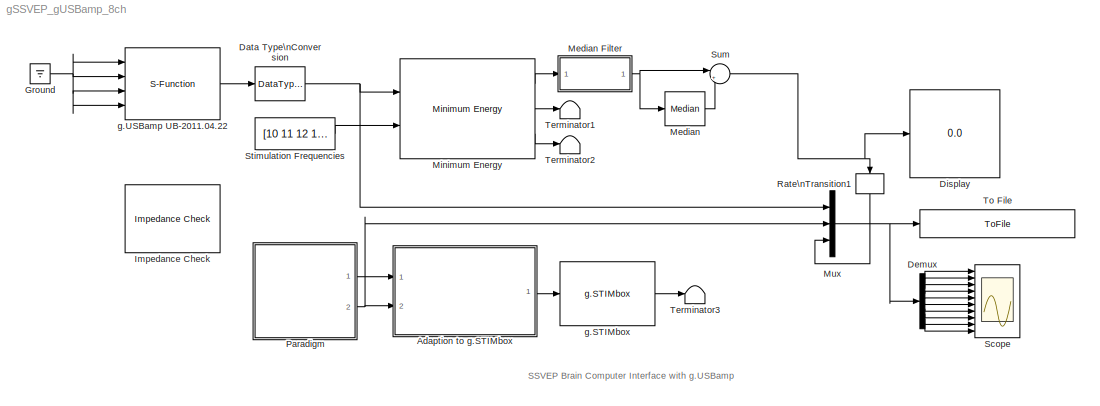
MODEL gSSVEP_gUSBamp_8ch
KIND model
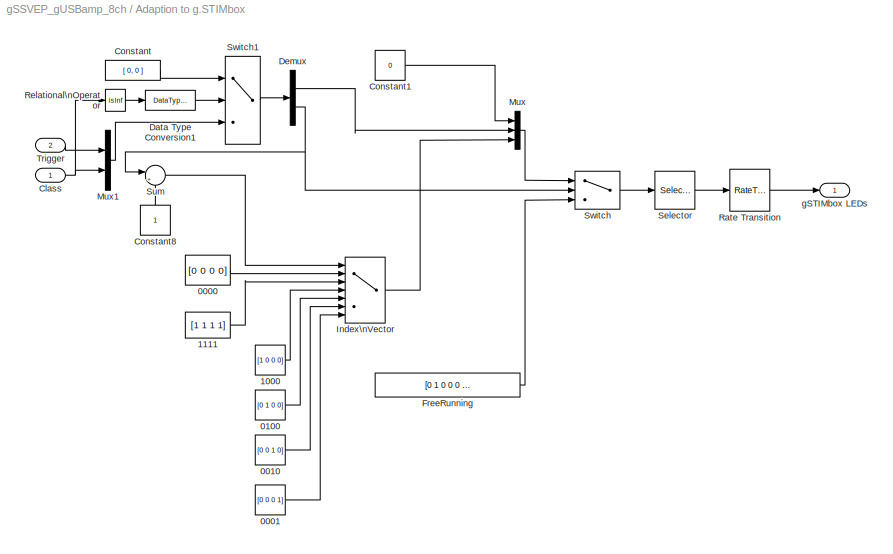
BLOCK [SubSystem] Adaption to g.STIMbox
  MinAlgLoopOccurrences = on
  Ports = [2, 1]
  RequestExecContextInheritance = off
  SID = 1
  Variant = off
BLOCK [Constant] Adaption to g.STIMbox/0000
  SID = 4
  SampleTime = 1/256
  Value = [0 0 0 0]
BLOCK [Constant] Adaption to g.STIMbox/0001
  SID = 5
  SampleTime = 1/256
  Value = [0 0 0 1]
BLOCK [Constant] Adaption to g.STIMbox/0010
  SID = 6
  SampleTime = 1/256
  Value = [0 0 1 0]
BLOCK [Constant] Adaption to g.STIMbox/0100
  SID = 7
  SampleTime = 1/256
  Value = [0 1 0 0]
BLOCK [Constant] Adaption to g.STIMbox/1000
  SID = 8
  SampleTime = 1/256
  Value = [1 0 0 0]
BLOCK [Constant] Adaption to g.STIMbox/1111
  SID = 9
  SampleTime = 1/256
  Value = [1 1 1 1]
BLOCK [Inport] Adaption to g.STIMbox/Class
  IconDisplay = Port number
  SID = 2
BLOCK [Constant] Adaption to g.STIMbox/Constant
  SID = 73
  Value = [ 0, 0 ]
BLOCK [Constant] Adaption to g.STIMbox/Constant1
  SID = 10
  SampleTime = 1/256
  Value = 0
BLOCK [Constant] Adaption to g.STIMbox/Constant8
  SID = 11
  SampleTime = 1/256
BLOCK [DataTypeConversion] Adaption to g.STIMbox/Data Type Conversion1
  RndMeth = Floor
  SID = 74
  SaturateOnIntegerOverflow = off
BLOCK [Demux] Adaption to g.STIMbox/Demux
  DisplayOption = bar
  Outputs = 2
  Ports = [1, 2]
  SID = 78
BLOCK [Constant] Adaption to g.STIMbox/FreeRunning
  SID = 12
  SampleTime = 1/256
  Value = [0 1 0 0 0 0]
BLOCK [MultiPortSwitch] Adaption to g.STIMbox/Index\nVector
  DataPortOrder = Zero-based contiguous
  InputSameDT = off
  Inputs = 6
  Ports = [7, 1]
  SID = 13
  SaturateOnIntegerOverflow = off
  zeroidx = on
BLOCK [Mux] Adaption to g.STIMbox/Mux
  DisplayOption = bar
  Inputs = 3
  Ports = [3, 1]
  SID = 14
BLOCK [Mux] Adaption to g.STIMbox/Mux1
  DisplayOption = bar
  Inputs = 2
  Ports = [2, 1]
  SID = 77
BLOCK [RateTransition] Adaption to g.STIMbox/Rate Transition
  SID = 15
BLOCK [RelationalOperator] Adaption to g.STIMbox/Relational\nOperator
  InputSameDT = off
  Operator = isInf
  OutDataTypeStr = boolean
  Ports = [1, 1]
  SID = 75
BLOCK [Selector] Adaption to g.STIMbox/Selector
  IndexOptions = Index vector (dialog)
  Indices = [ones(1,8) 2 3 2 4 2 5 2 6]
  InputPortWidth = 6
  OutputSizes = 1
  Ports = [1, 1]
  SID = 16
BLOCK [Sum] Adaption to g.STIMbox/Sum
  IconShape = round
  InputSameDT = off
  Inputs = |++
  OutDataTypeStr = Inherit: Inherit via internal rule
  Ports = [2, 1]
  SID = 17
  SaturateOnIntegerOverflow = off
BLOCK [Switch] Adaption to g.STIMbox/Switch
  InputSameDT = off
  SID = 18
  SaturateOnIntegerOverflow = off
BLOCK [Switch] Adaption to g.STIMbox/Switch1
  Criteria = u2 > Threshold
  InputSameDT = off
  SID = 76
  SaturateOnIntegerOverflow = off
BLOCK [Inport] Adaption to g.STIMbox/Trigger
  IconDisplay = Port number
  Port = 2
  SID = 3
BLOCK [Outport] Adaption to g.STIMbox/gSTIMbox LEDs
  IconDisplay = Port number
  SID = 19
BLOCK [DataTypeConversion] Data Type\nConversion
  OutDataTypeStr = double
  RndMeth = Floor
  SID = 21
  SaturateOnIntegerOverflow = off
BLOCK [Demux] Demux
  DisplayOption = bar
  Outputs = 10
  Ports = [1, 10]
  SID = 22
BLOCK [Display] Display
  Decimation = 1
  Ports = [1]
  SID = 23
BLOCK [Ground] Ground
  SID = 84
BLOCK [Reference] Impedance Check  REF=Tools/Impedance Check
  Ports = []
  SID = 26
  SourceBlock = Tools/Impedance Check
  SourceType = g.USBamp Impedance Check
BLOCK [Reference] Median  REF=dspstat3/Median
  LockScale = off
  Ports = [1, 1]
  SID = 61
  SourceBlock = dspstat3/Median
  SourceType = Median
  accumDataTypeStr = Inherit: Same as product output
  accumFracLength = 30
  accumLastDataTypeStr = Inherit: Same as product output
  accumMode = Same as product output
  accumWordLength = 32
  additionalParams = off
  allowOverrides = off
  dimension = 1
  directionMode = Entire input
  outputDataTypeStr = Inherit: Same as accumulator
  outputFracLength = 15
  outputLastDataTypeStr = Inherit: Same as accumulator
  outputMax = []
  outputMin = []
  outputMode = Same as accumulator
  outputWordLength = 16
  overflowMode = off
  prodOutputDataTypeStr = Inherit: Same as input
  prodOutputFracLength = 30
  prodOutputLastDataTypeStr = Inherit: Same as input
  prodOutputMode = Same as input
  prodOutputWordLength = 32
  roundingMode = Floor
  sortAlg = Quick sort
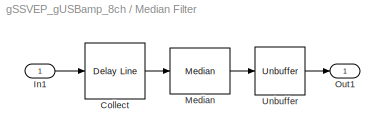
BLOCK [SubSystem] Median Filter
  Ports = [1, 1]
  RequestExecContextInheritance = off
  SID = 55
  Variant = off
BLOCK [Reference] Median Filter/Collect  REF=dspbuff3/Delay Line
  OutputFrames = on
  Ports = [1, 1]
  SID = 57
  SourceBlock = dspbuff3/Delay Line
  SourceType = Delay Line
  TreatMby1Signals = M channels (this choice will be removed - see release notes)
  UserData = DataTag0
  UserDataPersistent = on
  directfeed = on
  enable_output = off
  hold_output = off
  ic = 0
  siz = 10
BLOCK [Inport] Median Filter/In1
  IconDisplay = Port number
  SID = 56
BLOCK [Reference] Median Filter/Median  REF=dspstat3/Median
  LockScale = off
  Ports = [1, 1]
  SID = 58
  SourceBlock = dspstat3/Median
  SourceType = Median
  accumDataTypeStr = Inherit: Same as product output
  accumFracLength = 30
  accumLastDataTypeStr = Inherit: Same as product output
  accumMode = Same as product output
  accumWordLength = 32
  additionalParams = off
  allowOverrides = off
  dimension = 1
  directionMode = Specified dimension
  outputDataTypeStr = Inherit: Same as accumulator
  outputFracLength = 15
  outputLastDataTypeStr = Inherit: Same as accumulator
  outputMax = []
  outputMin = []
  outputMode = Same as accumulator
  outputWordLength = 16
  overflowMode = off
  prodOutputDataTypeStr = Inherit: Same as input
  prodOutputFracLength = 30
  prodOutputLastDataTypeStr = Inherit: Same as input
  prodOutputMode = Same as input
  prodOutputWordLength = 32
  roundingMode = Floor
  sortAlg = Quick sort
BLOCK [Outport] Median Filter/Out1
  IconDisplay = Port number
  SID = 60
BLOCK [Unbuffer] Median Filter/Unbuffer
  Ports = [1, 1]
  SID = 64
BLOCK [Reference] Minimum Energy  REF=gRTanalyze/Minimum Energy
  Ports = [2, 3]
  SID = 33
  SourceBlock = gRTanalyze/Minimum Energy
  SourceType = SSVEP Minimum Energy
  UserData = DataTag1
  UserDataPersistent = on
  bufflen = 768
  modelorder = 7
  numharmonics = 1
  reprate = 0.20
BLOCK [Mux] Mux
  DisplayOption = bar
  Inputs = 3
  Ports = [3, 1]
  SID = 34
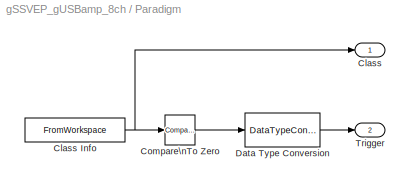
BLOCK [SubSystem] Paradigm
  MinAlgLoopOccurrences = on
  Ports = [0, 2]
  RequestExecContextInheritance = off
  SID = 35
  Variant = off
BLOCK [Outport] Paradigm/Class
  IconDisplay = Port number
  InitialOutput = 0
  SID = 39
BLOCK [FromWorkspace] Paradigm/Class Info
  Interpolate = off
  OutputAfterFinalValue = Holding final value
  SID = 36
  SampleTime = 1/256
  VariableName = paradigmDrivePattern
  ZeroCross = on
BLOCK [Reference] Paradigm/Compare\nTo Zero  REF=simulink/Logic and Bit\nOperations/Compare\nTo Zero
  OutDataTypeStr = uint8
  Ports = [1, 1]
  SID = 37
  SourceBlock = simulink/Logic and Bit\nOperations/Compare\nTo Zero
  SourceType = Compare To Zero
  ZeroCross = off
  relop = >
BLOCK [DataTypeConversion] Paradigm/Data Type Conversion
  RndMeth = Floor
  SID = 38
  SaturateOnIntegerOverflow = off
BLOCK [Outport] Paradigm/Trigger
  IconDisplay = Port number
  InitialOutput = 0
  Port = 2
  SID = 40
BLOCK [RateTransition] Rate\nTransition1
  SID = 41
BLOCK [Scope] Scope
  NumInputPorts = 10
  Ports = [10]
  SID = 42
  ScopeSpecificationString = Simulink.scopes.TimeScopeBlockCfg('CurrentConfiguration', extmgr.ConfigurationSet(extmgr.Configuration('Core','General UI',true),extmgr.Configuration('Core','Source UI',true),extmgr.Configuration('Sources','WiredSimulink',true,'DataLoggingSaveFormat','StructureWithTime','DataLoggingLimitDataPoints',true,'DataLoggingDecimation','1','DataLoggingDecimateData',true),extmgr.Configuration('Visuals','Tim...<+9302ch>
BLOCK [Constant] Stimulation Frequencies
  SID = 43
  SampleTime = 1/256
  Value = [10 11 12 13]
BLOCK [Sum] Sum
  IconShape = round
  InputSameDT = off
  Inputs = |+-
  OutDataTypeStr = Inherit: Inherit via internal rule
  Ports = [2, 1]
  SID = 62
  SaturateOnIntegerOverflow = off
BLOCK [Terminator] Terminator1
  SID = 44
BLOCK [Terminator] Terminator2
  SID = 45
BLOCK [Terminator] Terminator3
  SID = 46
BLOCK [ToFile] To File
  Filename = training_session_2.mat
  MatrixName = y
  Ports = [1]
  SID = 47
BLOCK [Reference] g.STIMbox  REF=gSTIMboxlib/g.STIMbox
  Ports = [1, 1]
  SID = 53
  SourceBlock = gSTIMboxlib/g.STIMbox
  SourceType = g.STIMbox
  bm = 0
  chfreqs = [1   1   1   1   1   1   1   1  10   1  11   1  12   1  13   1]
  chinv = [0  0  0  0  0  0  0  0  0  0  0  0  0  0]
  chmodes = [0  0  0  0  0  0  0  0  1  0  1  0  1  0  1  0]
  comport = 3
  fl = 1
  fs = 1
  ia = 1
  sr = 32
BLOCK [S-Function] g.USBamp UB-2011.04.22
  EnableBusSupport = off
  FunctionName = sf_gUSBamp
  OpenFcn = %gua_click   \ngua_block_cfg
  Parameters = cfg,snr
  Ports = [4, 1]
  SFunctionDeploymentMode = off
  SID = 54
ANNOTATION (root): SSVEP Brain Computer Interface with g.USBamp
LINE Adaption to g.STIMbox/0000:1 -> Adaption to g.STIMbox/Index\nVector:2
LINE Adaption to g.STIMbox/0001:1 -> Adaption to g.STIMbox/Index\nVector:7
LINE Adaption to g.STIMbox/0010:1 -> Adaption to g.STIMbox/Index\nVector:6
LINE Adaption to g.STIMbox/0100:1 -> Adaption to g.STIMbox/Index\nVector:5
LINE Adaption to g.STIMbox/1000:1 -> Adaption to g.STIMbox/Index\nVector:4
LINE Adaption to g.STIMbox/1111:1 -> Adaption to g.STIMbox/Index\nVector:3
NET Adaption to g.STIMbox/Class:1 -> Adaption to g.STIMbox/Mux1:2, Adaption to g.STIMbox/Relational\nOperator:1
LINE Adaption to g.STIMbox/Constant1:1 -> Adaption to g.STIMbox/Mux:1
LINE Adaption to g.STIMbox/Constant8:1 -> Adaption to g.STIMbox/Sum:2
LINE Adaption to g.STIMbox/Constant:1 -> Adaption to g.STIMbox/Switch1:1
LINE Adaption to g.STIMbox/Data Type Conversion1:1 -> Adaption to g.STIMbox/Switch1:2
LINE Adaption to g.STIMbox/Demux:1 -> Adaption to g.STIMbox/Mux:2
NET Adaption to g.STIMbox/Demux:2 -> Adaption to g.STIMbox/Sum:1, Adaption to g.STIMbox/Switch:2
LINE Adaption to g.STIMbox/FreeRunning:1 -> Adaption to g.STIMbox/Switch:3
LINE Adaption to g.STIMbox/Index\nVector:1 -> Adaption to g.STIMbox/Mux:3
LINE Adaption to g.STIMbox/Mux1:1 -> Adaption to g.STIMbox/Switch1:3
LINE Adaption to g.STIMbox/Mux:1 -> Adaption to g.STIMbox/Switch:1
LINE Adaption to g.STIMbox/Rate Transition:1 -> Adaption to g.STIMbox/gSTIMbox LEDs:1
LINE Adaption to g.STIMbox/Relational\nOperator:1 -> Adaption to g.STIMbox/Data Type Conversion1:1
LINE Adaption to g.STIMbox/Selector:1 -> Adaption to g.STIMbox/Rate Transition:1
LINE Adaption to g.STIMbox/Sum:1 -> Adaption to g.STIMbox/Index\nVector:1
LINE Adaption to g.STIMbox/Switch1:1 -> Adaption to g.STIMbox/Demux:1
LINE Adaption to g.STIMbox/Switch:1 -> Adaption to g.STIMbox/Selector:1
LINE Adaption to g.STIMbox/Trigger:1 -> Adaption to g.STIMbox/Mux1:1
LINE Adaption to g.STIMbox:1 -> g.STIMbox:1
NET Data Type\nConversion:1 -> Minimum Energy:1, Mux:1
LINE Demux:1 -> Scope:1
LINE Demux:10 -> Scope:10
LINE Demux:2 -> Scope:2
LINE Demux:3 -> Scope:3
LINE Demux:4 -> Scope:4
LINE Demux:5 -> Scope:5
LINE Demux:6 -> Scope:6
LINE Demux:7 -> Scope:7
LINE Demux:8 -> Scope:8
LINE Demux:9 -> Scope:9
NET Ground:1 -> g.USBamp UB-2011.04.22:1, g.USBamp UB-2011.04.22:2, g.USBamp UB-2011.04.22:3, g.USBamp UB-2011.04.22:4
LINE Median Filter/Collect:1 -> Median Filter/Median:1
LINE Median Filter/In1:1 -> Median Filter/Collect:1
LINE Median Filter/Median:1 -> Median Filter/Unbuffer:1
LINE Median Filter/Unbuffer:1 -> Median Filter/Out1:1
NET Median Filter:1 -> Median:1, Sum:1
LINE Median:1 -> Sum:2
LINE Minimum Energy:1 -> Median Filter:1
LINE Minimum Energy:2 -> Terminator1:1
LINE Minimum Energy:3 -> Terminator2:1
NET Mux:1 -> Demux:1, To File:1
NET Paradigm/Class Info:1 -> Paradigm/Class:1, Paradigm/Compare\nTo Zero:1
LINE Paradigm/Compare\nTo Zero:1 -> Paradigm/Data Type Conversion:1
LINE Paradigm/Data Type Conversion:1 -> Paradigm/Trigger:1
LINE Paradigm:1 -> Adaption to g.STIMbox:1
NET Paradigm:2 -> Adaption to g.STIMbox:2, Mux:2
LINE Rate\nTransition1:1 -> Mux:3
LINE Stimulation Frequencies:1 -> Minimum Energy:2
NET Sum:1 -> Display:1, Rate\nTransition1:1
LINE g.STIMbox:1 -> Terminator3:1
LINE g.USBamp UB-2011.04.22:1 -> Data Type\nConversion:1
note: NET lines group one-source signal fan-out (src -> all destinations, sorted); 1:1 wires keep LINE
